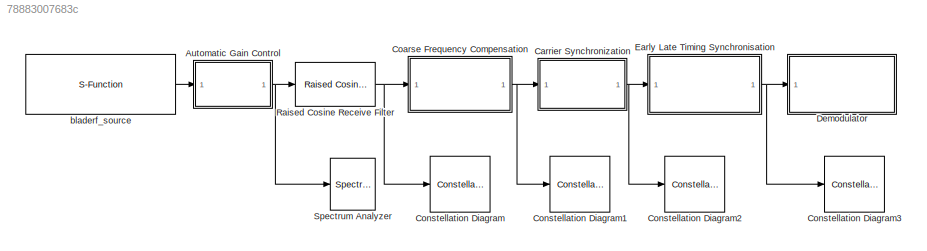
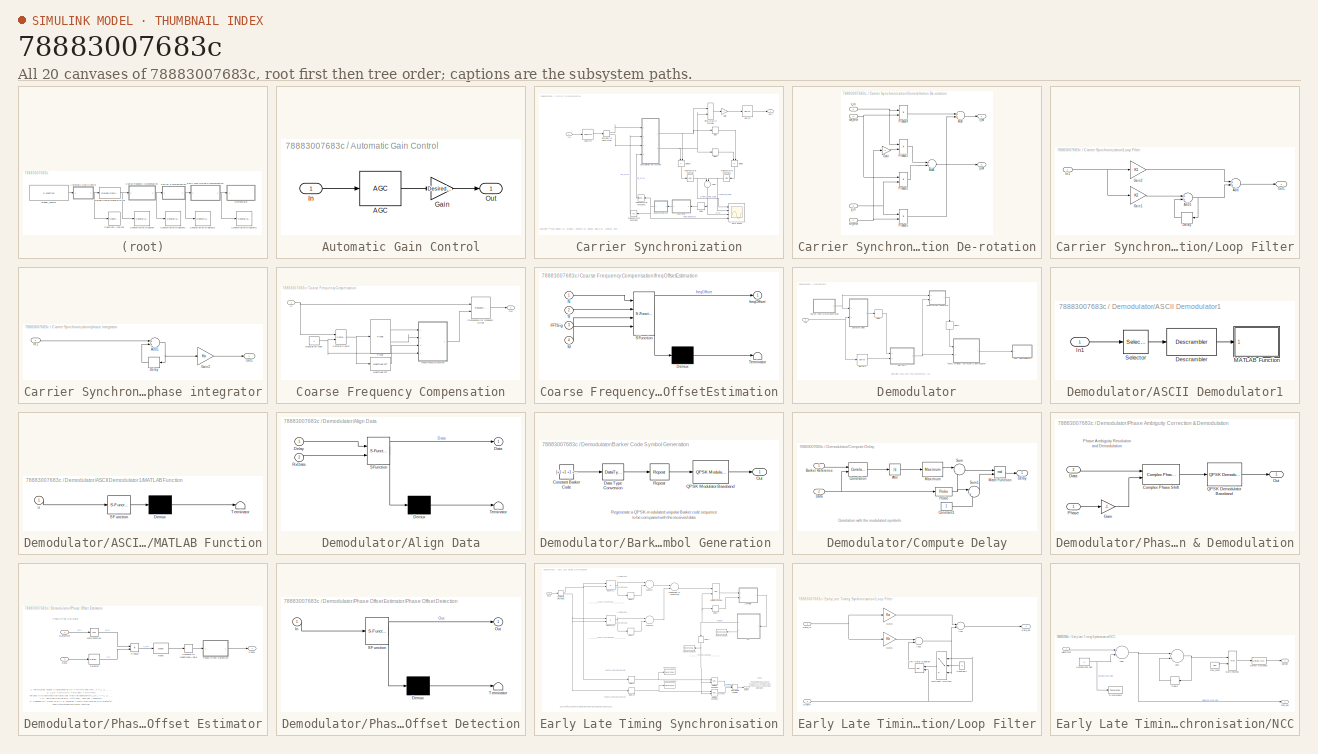
[diagram: thumbnail index - all 20 canvases of the model, root first then tree order]
MODEL slx_78883007683c
KIND model
CONFIG AbsTol = auto
CONFIG FixedStep = auto
CONFIG InitFcn = % General simulation parameters\nM = 4;                         % M-PSK alphabet size\nUpsampling = 4;            % Upsampling factor\nDownsampling = 2;        % Downsampling factor\nFs = 2e6;                     % Sample rate\nTs = 1/Fs;                    % Sample time\nFrameSize = 111;          % Number of modulated symbols per frame\n%MessageLength = 105;  % Number of message bits per frame, 7 ASCII ...<+1014ch>
CONFIG MaxStep = auto
CONFIG MinStep = auto
CONFIG RelTol = 1e-3
CONFIG SampleTimeConstraint = Unconstrained
CONFIG Solver = VariableStepAuto
CONFIG SolverMode = Auto
CONFIG SolverName = VariableStepAuto
CONFIG StartTime = 0.0
CONFIG StopTime = inf
BLOCK [SubSystem] Automatic Gain Control
  Ports = [1, 1]
  RequestExecContextInheritance = off
  Variant = off
BLOCK [Reference] Automatic Gain Control/AGC  REF=commrfcorlib/AGC
  Ports = [1, 1]
  SourceBlock = commrfcorlib/AGC
  SourceType = AGC
BLOCK [Gain] Automatic Gain Control/Gain
  Gain = DesiredAmplitude
  OutDataTypeStr = Inherit: Inherit via internal rule
  ParamDataTypeStr = Inherit: Inherit via internal rule
  SaturateOnIntegerOverflow = off
BLOCK [Inport] Automatic Gain Control/In
  IconDisplay = Port number
BLOCK [Outport] Automatic Gain Control/Out
  IconDisplay = Port number
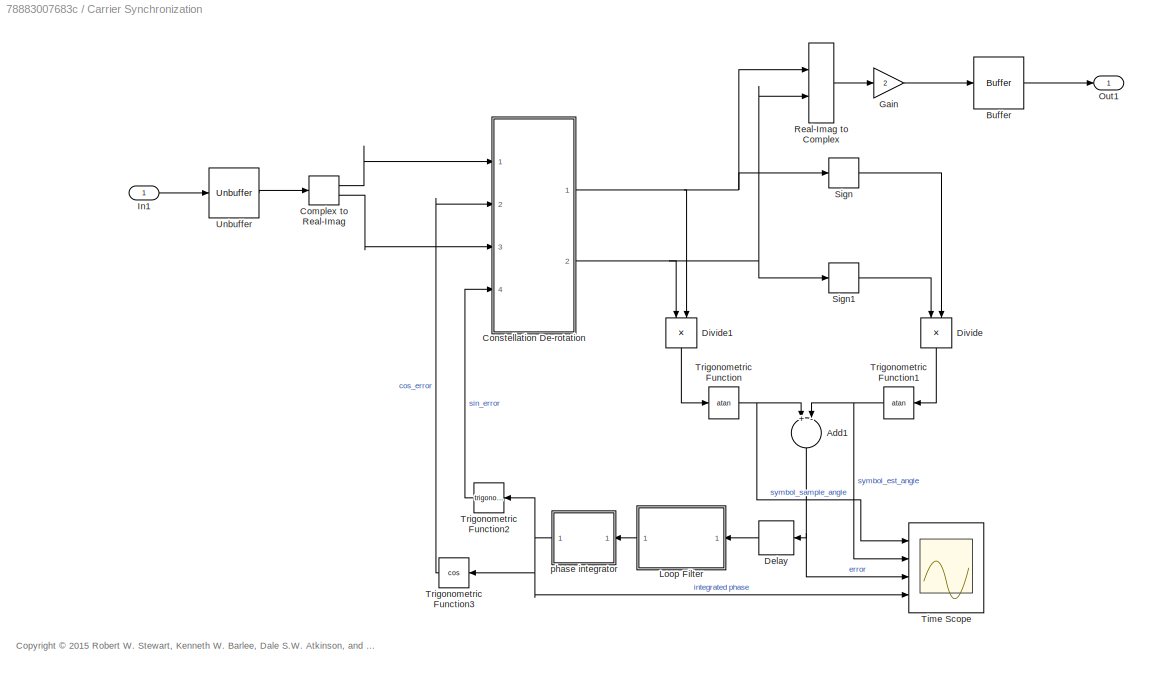
BLOCK [SubSystem] Carrier Synchronization
  Ports = [1, 1]
  RequestExecContextInheritance = off
  Variant = off
BLOCK [Sum] Carrier Synchronization/Add1
  InputSameDT = off
  Inputs = +-
  OutDataTypeStr = Inherit: Inherit via internal rule
  Ports = [2, 1]
  SaturateOnIntegerOverflow = off
BLOCK [Buffer] Carrier Synchronization/Buffer
  N = 111
  OutputFrames = off
  TreatMby1Signals = One channel
BLOCK [ComplexToRealImag] Carrier Synchronization/Complex to Real-Imag
  Ports = [1, 2]
BLOCK [SubSystem] Carrier Synchronization/Constellation De-rotation
  Ports = [4, 2]
  RequestExecContextInheritance = off
  Variant = off
BLOCK [Sum] Carrier Synchronization/Constellation De-rotation/Add
  InputSameDT = off
  OutDataTypeStr = Inherit: Inherit via internal rule
  Ports = [2, 1]
  SaturateOnIntegerOverflow = off
BLOCK [Sum] Carrier Synchronization/Constellation De-rotation/Add1
  InputSameDT = off
  OutDataTypeStr = Inherit: Inherit via internal rule
  Ports = [2, 1]
  SaturateOnIntegerOverflow = off
BLOCK [Gain] Carrier Synchronization/Constellation De-rotation/Gain
  Gain = -1
  OutDataTypeStr = Inherit: Inherit via internal rule
  ParamDataTypeStr = Inherit: Inherit via internal rule
  SaturateOnIntegerOverflow = off
BLOCK [Product] Carrier Synchronization/Constellation De-rotation/Product1
  InputSameDT = off
  OutDataTypeStr = Inherit: Inherit via internal rule
  Ports = [2, 1]
  RndMeth = Floor
  SaturateOnIntegerOverflow = off
BLOCK [Product] Carrier Synchronization/Constellation De-rotation/Product2
  InputSameDT = off
  OutDataTypeStr = Inherit: Inherit via internal rule
  Ports = [2, 1]
  RndMeth = Floor
  SaturateOnIntegerOverflow = off
BLOCK [Product] Carrier Synchronization/Constellation De-rotation/Product4
  InputSameDT = off
  OutDataTypeStr = Inherit: Inherit via internal rule
  Ports = [2, 1]
  RndMeth = Floor
  SaturateOnIntegerOverflow = off
BLOCK [Product] Carrier Synchronization/Constellation De-rotation/Product5
  InputSameDT = off
  OutDataTypeStr = Inherit: Inherit via internal rule
  Ports = [2, 1]
  RndMeth = Floor
  SaturateOnIntegerOverflow = off
BLOCK [Inport] Carrier Synchronization/Constellation De-rotation/cos_error
  IconDisplay = Port number
  Port = 2
BLOCK [Inport] Carrier Synchronization/Constellation De-rotation/sin_error
  IconDisplay = Port number
  Port = 4
BLOCK [Inport] Carrier Synchronization/Constellation De-rotation/x_in
  IconDisplay = Port number
BLOCK [Outport] Carrier Synchronization/Constellation De-rotation/x_out
  IconDisplay = Port number
BLOCK [Inport] Carrier Synchronization/Constellation De-rotation/y_in
  IconDisplay = Port number
  Port = 3
BLOCK [Outport] Carrier Synchronization/Constellation De-rotation/y_out
  IconDisplay = Port number
  Port = 2
BLOCK [Delay] Carrier Synchronization/Delay
  DelayLength = 1
  InputPortMap = u0
  Ports = [1, 1]
BLOCK [Product] Carrier Synchronization/Divide
  InputSameDT = off
  Inputs = */
  OutDataTypeStr = Inherit: Inherit via internal rule
  Ports = [2, 1]
  RndMeth = Floor
  SaturateOnIntegerOverflow = off
BLOCK [Product] Carrier Synchronization/Divide1
  InputSameDT = off
  Inputs = */
  OutDataTypeStr = Inherit: Inherit via internal rule
  Ports = [2, 1]
  RndMeth = Floor
  SaturateOnIntegerOverflow = off
BLOCK [Gain] Carrier Synchronization/Gain
  Gain = 2
  OutDataTypeStr = Inherit: Inherit via internal rule
  ParamDataTypeStr = Inherit: Inherit via internal rule
  SaturateOnIntegerOverflow = off
BLOCK [Inport] Carrier Synchronization/In1
  IconDisplay = Port number
BLOCK [SubSystem] Carrier Synchronization/Loop Filter
  Ports = [1, 1]
  RequestExecContextInheritance = off
  Variant = off
BLOCK [Sum] Carrier Synchronization/Loop Filter/Add
  InputSameDT = off
  OutDataTypeStr = Inherit: Inherit via internal rule
  Ports = [2, 1]
  SaturateOnIntegerOverflow = off
BLOCK [Sum] Carrier Synchronization/Loop Filter/Add1
  InputSameDT = off
  OutDataTypeStr = Inherit: Inherit via internal rule
  Ports = [2, 1]
  SaturateOnIntegerOverflow = off
BLOCK [Delay] Carrier Synchronization/Loop Filter/Delay
  DelayLength = 1
  InputPortMap = u0
  Ports = [1, 1]
BLOCK [Gain] Carrier Synchronization/Loop Filter/Gain1
  Gain = K2
  OutDataTypeStr = Inherit: Inherit via internal rule
  ParamDataTypeStr = Inherit: Inherit via internal rule
  SaturateOnIntegerOverflow = off
BLOCK [Gain] Carrier Synchronization/Loop Filter/Gain2
  Gain = K1
  OutDataTypeStr = Inherit: Inherit via internal rule
  ParamDataTypeStr = Inherit: Inherit via internal rule
  SaturateOnIntegerOverflow = off
BLOCK [Inport] Carrier Synchronization/Loop Filter/In1
  IconDisplay = Port number
BLOCK [Outport] Carrier Synchronization/Loop Filter/Out1
  IconDisplay = Port number
BLOCK [Outport] Carrier Synchronization/Out1
  IconDisplay = Port number
BLOCK [RealImagToComplex] Carrier Synchronization/Real-Imag to Complex
  Ports = [2, 1]
BLOCK [Signum] Carrier Synchronization/Sign
BLOCK [Signum] Carrier Synchronization/Sign1
BLOCK [Scope] Carrier Synchronization/Time Scope
  Commented = on
  DefaultConfigurationName = spbscopes.TimeScopeBlockCfg
  NumInputPorts = 4
  Ports = [4]
  ScopeSpecificationString = spbscopes.TimeScopeBlockCfg('CurrentConfiguration', extmgr.ConfigurationSet(extmgr.Configuration('Core','General UI',true,'FigureColor',[0.941176470588235 0.941176470588235 0.941176470588235]),extmgr.Configuration('Core','Source UI',true),extmgr.Configuration('Sources','WiredSimulink',true,'PointsPerSignal',500000),extmgr.Configuration('Visuals','Time Domain',true,'DisplayLayoutDimensions',[4 1],'...<+4327ch>
  StartFcn = startfcn_time_scope;
  UserDataPersistent = on
BLOCK [Trigonometry] Carrier Synchronization/Trigonometric Function
  Operator = atan
  OutputSignalType = real
  Ports = [1, 1]
BLOCK [Trigonometry] Carrier Synchronization/Trigonometric Function1
  Operator = atan
  OutputSignalType = real
  Ports = [1, 1]
BLOCK [Trigonometry] Carrier Synchronization/Trigonometric Function2
  Ports = [1, 1]
BLOCK [Trigonometry] Carrier Synchronization/Trigonometric Function3
  Operator = cos
  Ports = [1, 1]
BLOCK [Unbuffer] Carrier Synchronization/Unbuffer
  Ports = [1, 1]
  SampleBasedProcessing = Same as frame based
BLOCK [SubSystem] Carrier Synchronization/phase integrator
  Ports = [1, 1]
  RequestExecContextInheritance = off
  Variant = off
BLOCK [Sum] Carrier Synchronization/phase integrator/Add1
  InputSameDT = off
  OutDataTypeStr = Inherit: Inherit via internal rule
  Ports = [2, 1]
  SaturateOnIntegerOverflow = off
BLOCK [Delay] Carrier Synchronization/phase integrator/Delay
  DelayLength = 1
  InputPortMap = u0
  Ports = [1, 1]
BLOCK [Gain] Carrier Synchronization/phase integrator/Gain2
  Gain = Ko
  OutDataTypeStr = Inherit: Inherit via internal rule
  ParamDataTypeStr = Inherit: Inherit via internal rule
  SaturateOnIntegerOverflow = off
BLOCK [Inport] Carrier Synchronization/phase integrator/In1
  IconDisplay = Port number
BLOCK [Outport] Carrier Synchronization/phase integrator/Out1
  IconDisplay = Port number
BLOCK [SubSystem] Coarse Frequency Compensation
  Ports = [1, 1]
  RequestExecContextInheritance = off
  Variant = off
BLOCK [Reference] Coarse Frequency Compensation/Compensate for Frequency Offset  REF=commrflib2/Phase//
Frequency
Offset
  Ports = [2, 1]
  SourceBlock = commrflib2/Phase//\nFrequency\nOffset
  SourceType = Phase/Frequency Offset
BLOCK [Reference] Coarse Frequency Compensation/Complex Power  REF=commblksprivate/Complex Power
  Ports = [2, 1]
  SourceBlock = commblksprivate/Complex Power
  SourceType = Complex Power
BLOCK [Inport] Coarse Frequency Compensation/In
  IconDisplay = Port number
BLOCK [Reference] Coarse Frequency Compensation/Magnitude FFT  REF=dspspect3/Magnitude
FFT
  Ports = [1, 1]
  SourceBlock = dspspect3/Magnitude\nFFT
  SourceType = Magnitude FFT
BLOCK [Constant] Coarse Frequency Compensation/Modulation Index
  OutDataTypeStr = Inherit: Inherit via back propagation
  Value = 4
BLOCK [Outport] Coarse Frequency Compensation/Out
  IconDisplay = Port number
BLOCK [Probe] Coarse Frequency Compensation/Probe
  Ports = [1, 2]
  ProbeComplexSignal = off
BLOCK [SubSystem] Coarse Frequency Compensation/freqOffsetEstimation
  ErrorFcn = Stateflow.Translate.translate
  PermitHierarchicalResolution = ExplicitOnly
  Ports = [4, 1]
  RequestExecContextInheritance = off
  SFBlockType = MATLAB Function
  TreatAsAtomicUnit = on
  Variant = off
BLOCK [Demux] Coarse Frequency Compensation/freqOffsetEstimation/ Demux 
  Outputs = 1
  Ports = [1, 1]
BLOCK [S-Function] Coarse Frequency Compensation/freqOffsetEstimation/ SFunction 
  EnableBusSupport = on
  FunctionName = sf_sfun
  PortCounts = [4 2]
  Ports = [4, 2]
  SFunctionDeploymentMode = off
  Tag = Stateflow S-Function QpskRxBradeRf 2
BLOCK [Terminator] Coarse Frequency Compensation/freqOffsetEstimation/ Terminator 
BLOCK [Inport] Coarse Frequency Compensation/freqOffsetEstimation/FFTSig
  IconDisplay = Port number
  Port = 3
BLOCK [Inport] Coarse Frequency Compensation/freqOffsetEstimation/M
  IconDisplay = Port number
  Port = 4
BLOCK [Inport] Coarse Frequency Compensation/freqOffsetEstimation/N
  IconDisplay = Port number
BLOCK [Inport] Coarse Frequency Compensation/freqOffsetEstimation/Tf
  IconDisplay = Port number
  Port = 2
BLOCK [Outport] Coarse Frequency Compensation/freqOffsetEstimation/freqOffset
  IconDisplay = Port number
BLOCK [ConstellationDiagram] Constellation Diagram
  Ports = [1]
  ScopeSpecificationString = comm.scopes.ConstellationDiagramBlockCfg('CurrentConfiguration', extmgr.ConfigurationSet(extmgr.Configuration('Core','General UI',true),extmgr.Configuration('Core','Source UI',true),extmgr.Configuration('Sources','WiredSimulink',true),extmgr.Configuration('Visuals','Constellation',true,'LineProperties',struct('DisplayName','','Color',[1 1 0.0666666666666667],'LineStyle','none','LineWidth',0.5,'Mar...<+1151ch>
BLOCK [ConstellationDiagram] Constellation Diagram1
  Ports = [1]
  ScopeSpecificationString = comm.scopes.ConstellationDiagramBlockCfg('CurrentConfiguration', extmgr.ConfigurationSet(extmgr.Configuration('Core','General UI',true),extmgr.Configuration('Core','Source UI',true),extmgr.Configuration('Sources','WiredSimulink',true),extmgr.Configuration('Visuals','Constellation',true,'LineProperties',struct('DisplayName','','Color',[1 1 0.0666666666666667],'LineStyle','none','LineWidth',0.5,'Mar...<+1152ch>
BLOCK [ConstellationDiagram] Constellation Diagram2
  Ports = [1]
  ScopeSpecificationString = comm.scopes.ConstellationDiagramBlockCfg('CurrentConfiguration', extmgr.ConfigurationSet(extmgr.Configuration('Core','General UI',true),extmgr.Configuration('Core','Source UI',true),extmgr.Configuration('Sources','WiredSimulink',true),extmgr.Configuration('Visuals','Constellation',true,'LineProperties',struct('DisplayName','','Color',[1 1 0.0666666666666667],'LineStyle','none','LineWidth',0.5,'Mar...<+1152ch>
BLOCK [ConstellationDiagram] Constellation Diagram3
  Ports = [1]
  ScopeSpecificationString = comm.scopes.ConstellationDiagramBlockCfg('CurrentConfiguration', extmgr.ConfigurationSet(extmgr.Configuration('Core','General UI',true),extmgr.Configuration('Core','Source UI',true),extmgr.Configuration('Sources','WiredSimulink',true),extmgr.Configuration('Visuals','Constellation',true,'LineProperties',struct('DisplayName','','Color',[1 1 0.0666666666666667],'LineStyle','none','LineWidth',0.5,'Mar...<+1153ch>
BLOCK [SubSystem] Demodulator
  Ports = [1]
  RequestExecContextInheritance = off
  Variant = off
BLOCK [SubSystem] Demodulator/ASCII Demodulator1
  Ports = [1]
  RequestExecContextInheritance = off
  Variant = off
BLOCK [Reference] Demodulator/ASCII Demodulator1/Descrambler  REF=commsequence2/Descrambler
  Ports = [1, 1]
  SourceBlock = commsequence2/Descrambler
  SourceType = Descrambler
BLOCK [Inport] Demodulator/ASCII Demodulator1/In1
  IconDisplay = Port number
BLOCK [SubSystem] Demodulator/ASCII Demodulator1/MATLAB Function
  ErrorFcn = Stateflow.Translate.translate
  PermitHierarchicalResolution = ExplicitOnly
  Ports = [1]
  RequestExecContextInheritance = off
  SFBlockType = MATLAB Function
  TreatAsAtomicUnit = on
  Variant = off
BLOCK [Demux] Demodulator/ASCII Demodulator1/MATLAB Function/ Demux 
  Outputs = 1
  Ports = [1, 1]
BLOCK [S-Function] Demodulator/ASCII Demodulator1/MATLAB Function/ SFunction 
  EnableBusSupport = on
  FunctionName = sf_sfun
  PortCounts = [1 1]
  Ports = [1, 1]
  SFunctionDeploymentMode = off
  Tag = Stateflow S-Function QpskRxBradeRf 5
BLOCK [Terminator] Demodulator/ASCII Demodulator1/MATLAB Function/ Terminator 
BLOCK [Inport] Demodulator/ASCII Demodulator1/MATLAB Function/u
  IconDisplay = Port number
BLOCK [Selector] Demodulator/ASCII Demodulator1/Selector
  IndexOptions = Index vector (dialog)
  Indices = [27:208]
  InputPortWidth = 222
  OutputSizes = 1
  Ports = [1, 1]
BLOCK [SubSystem] Demodulator/Align Data
  ErrorFcn = Stateflow.Translate.translate
  PermitHierarchicalResolution = ExplicitOnly
  Ports = [2, 1]
  RequestExecContextInheritance = off
  SFBlockType = MATLAB Function
  TreatAsAtomicUnit = on
  Variant = off
BLOCK [Demux] Demodulator/Align Data/ Demux 
  Outputs = 1
  Ports = [1, 1]
BLOCK [S-Function] Demodulator/Align Data/ SFunction 
  EnableBusSupport = on
  FunctionName = sf_sfun
  PortCounts = [2 2]
  Ports = [2, 2]
  SFunctionDeploymentMode = off
  Tag = Stateflow S-Function QpskRxBradeRf 3
BLOCK [Terminator] Demodulator/Align Data/ Terminator 
BLOCK [Outport] Demodulator/Align Data/Data
  IconDisplay = Port number
BLOCK [Inport] Demodulator/Align Data/Delay
  IconDisplay = Port number
BLOCK [Inport] Demodulator/Align Data/RxData
  IconDisplay = Port number
  Port = 2
BLOCK [SubSystem] Demodulator/Barker Code Symbol Generation 
  Ports = [0, 1]
  RequestExecContextInheritance = off
  Variant = off
BLOCK [Constant] Demodulator/Barker Code Symbol Generation /Constant Barker Code
  SamplingMode = Frame based
  Value = [+1 +1 +1 +1 +1 -1 -1 +1 +1 -1 +1 -1 +1\n].' > 0
  VectorParams1D = off
BLOCK [DataTypeConversion] Demodulator/Barker Code Symbol Generation /Data Type Conversion
  OutDataTypeStr = double
  RndMeth = Floor
  SaturateOnIntegerOverflow = off
BLOCK [Outport] Demodulator/Barker Code Symbol Generation /Out
  IconDisplay = Port number
BLOCK [Reference] Demodulator/Barker Code Symbol Generation /QPSK Modulator Baseband  REF=commdigbbndpm3/QPSK
Modulator
Baseband
  Ports = [1, 1]
  SourceBlock = commdigbbndpm3/QPSK\nModulator\nBaseband
  SourceType = QPSK Modulator Baseband
BLOCK [Reference] Demodulator/Barker Code Symbol Generation /Repeat  REF=dspsigops/Repeat
  Ports = [1, 1]
  SourceBlock = dspsigops/Repeat
  SourceType = Repeat
  UserDataPersistent = on
BLOCK [Buffer] Demodulator/Buffer1
  N = FrameSize*2
  TreatMby1Signals = One channel
  V = FrameSize
BLOCK [SubSystem] Demodulator/Compute Delay
  Ports = [2, 1]
  RequestExecContextInheritance = off
  Variant = off
BLOCK [Abs] Demodulator/Compute Delay/Abs
  SaturateOnIntegerOverflow = off
BLOCK [Inport] Demodulator/Compute Delay/Barker Reference
  IconDisplay = Port number
BLOCK [Constant] Demodulator/Compute Delay/Constant1
  FramePeriod = 2
  OutDataTypeStr = Inherit: Inherit via back propagation
  VectorParams1D = off
BLOCK [Reference] Demodulator/Compute Delay/Correlation  REF=dspstat3/Correlation
  Ports = [2, 1]
  SourceBlock = dspstat3/Correlation
  SourceType = Correlation
BLOCK [Inport] Demodulator/Compute Delay/Data
  IconDisplay = Port number
  Port = 2
BLOCK [Outport] Demodulator/Compute Delay/Delay
  IconDisplay = Port number
BLOCK [Math] Demodulator/Compute Delay/Math Function
  Operator = mod
  Ports = [2, 1]
BLOCK [Reference] Demodulator/Compute Delay/Maximum  REF=dspstat3/Maximum
  Ports = [1, 1]
  SourceBlock = dspstat3/Maximum
  SourceType = Maximum
  UserDataPersistent = on
BLOCK [Probe] Demodulator/Compute Delay/Probe
  Ports = [1, 1]
  ProbeComplexSignal = off
  ProbeSampleTime = off
BLOCK [Sum] Demodulator/Compute Delay/Sum
  IconShape = round
  Inputs = |-+
  Ports = [2, 1]
BLOCK [Sum] Demodulator/Compute Delay/Sum1
  IconShape = round
  Inputs = |+-
  Ports = [2, 1]
BLOCK [Delay] Demodulator/Delay
  DelayLength = 1
  InputPortMap = u0
  Ports = [1, 1]
BLOCK [Delay] Demodulator/Delay1
  DelayLength = 1
  InputPortMap = u0
  Ports = [1, 1]
BLOCK [Inport] Demodulator/In1
  IconDisplay = Port number
BLOCK [SubSystem] Demodulator/Phase Ambiguity Correction & Demodulation
  Ports = [2, 1]
  RequestExecContextInheritance = off
  Variant = off
BLOCK [Reference] Demodulator/Phase Ambiguity Correction & Demodulation/Complex Phase Shift  REF=commutil2/Complex Phase
Shift
  Ports = [2, 1]
  SourceBlock = commutil2/Complex Phase\nShift
  SourceType = Complex Phase Shift
BLOCK [Inport] Demodulator/Phase Ambiguity Correction & Demodulation/Data
  IconDisplay = Port number
  Port = 2
BLOCK [Gain] Demodulator/Phase Ambiguity Correction & Demodulation/Gain
  Gain = -1
  OutDataTypeStr = Inherit: Inherit via internal rule
  ParamDataTypeStr = Inherit: Inherit via internal rule
  SaturateOnIntegerOverflow = off
BLOCK [Outport] Demodulator/Phase Ambiguity Correction & Demodulation/Out
  IconDisplay = Port number
BLOCK [Inport] Demodulator/Phase Ambiguity Correction & Demodulation/Phase
  IconDisplay = Port number
BLOCK [Reference] Demodulator/Phase Ambiguity Correction & Demodulation/QPSK Demodulator Baseband  REF=commdigbbndpm3/QPSK
Demodulator
Baseband
  Ports = [1, 1]
  SourceBlock = commdigbbndpm3/QPSK\nDemodulator\nBaseband
  SourceType = QPSK Demodulator Baseband
BLOCK [SubSystem] Demodulator/Phase Offset Estimator
  Ports = [2, 1]
  RequestExecContextInheritance = off
  Variant = off
BLOCK [Inport] Demodulator/Phase Offset Estimator/BarkerRef
  IconDisplay = Port number
BLOCK [ComplexToMagnitudeAngle] Demodulator/Phase Offset Estimator/Complex to Magnitude-Angle
  Output = Angle
  Ports = [1, 1]
BLOCK [Inport] Demodulator/Phase Offset Estimator/Data
  IconDisplay = Port number
  Port = 2
BLOCK [Math] Demodulator/Phase Offset Estimator/Math Function
  Operator = conj
  Ports = [1, 1]
BLOCK [Reference] Demodulator/Phase Offset Estimator/Mean  REF=dspstat3/Mean
  Ports = [1, 1]
  SourceBlock = dspstat3/Mean
  SourceType = Mean
  UserDataPersistent = on
BLOCK [Outport] Demodulator/Phase Offset Estimator/Phase
  IconDisplay = Port number
BLOCK [SubSystem] Demodulator/Phase Offset Estimator/Phase Offset Detection
  ErrorFcn = Stateflow.Translate.translate
  PermitHierarchicalResolution = ExplicitOnly
  Ports = [1, 1]
  RequestExecContextInheritance = off
  SFBlockType = MATLAB Function
  TreatAsAtomicUnit = on
  Variant = off
BLOCK [Demux] Demodulator/Phase Offset Estimator/Phase Offset Detection/ Demux 
  Outputs = 1
  Ports = [1, 1]
BLOCK [S-Function] Demodulator/Phase Offset Estimator/Phase Offset Detection/ SFunction 
  EnableBusSupport = on
  FunctionName = sf_sfun
  PortCounts = [1 2]
  Ports = [1, 2]
  SFunctionDeploymentMode = off
  Tag = Stateflow S-Function QpskRxBradeRf 8
BLOCK [Terminator] Demodulator/Phase Offset Estimator/Phase Offset Detection/ Terminator 
BLOCK [Inport] Demodulator/Phase Offset Estimator/Phase Offset Detection/In
  IconDisplay = Port number
BLOCK [Outport] Demodulator/Phase Offset Estimator/Phase Offset Detection/Out
  IconDisplay = Port number
BLOCK [Product] Demodulator/Phase Offset Estimator/Product
  InputSameDT = off
  OutDataTypeStr = Inherit: Inherit via internal rule
  Ports = [2, 1]
  SaturateOnIntegerOverflow = off
BLOCK [Selector] Demodulator/Phase Offset Estimator/Selector
  IndexOptions = Index vector (dialog)
  Indices = [1:BarkerLength]
  OutputSizes = 1
  Ports = [1, 1]
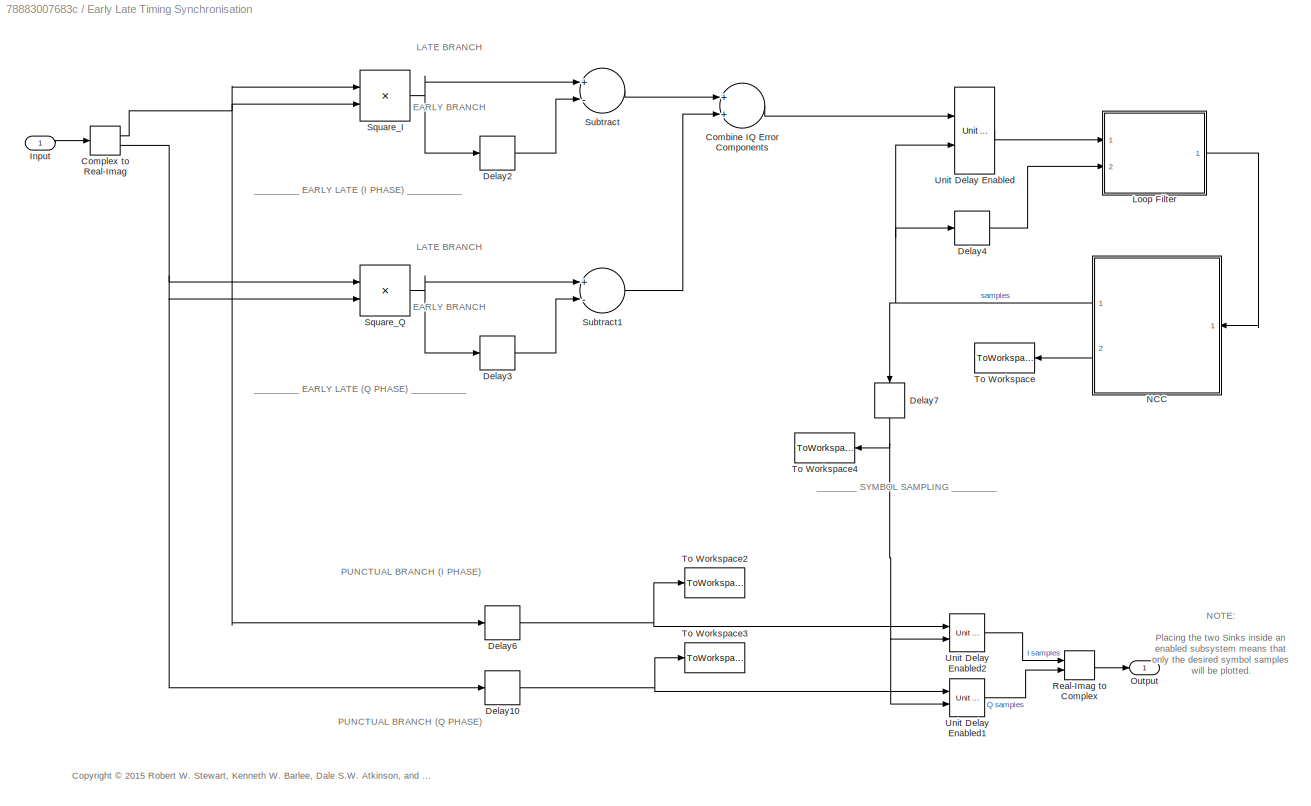
BLOCK [SubSystem] Early Late Timing Synchronisation
  Ports = [1, 1]
  RequestExecContextInheritance = off
  Variant = off
BLOCK [Sum] Early Late Timing Synchronisation/Combine IQ Error Components
  InputSameDT = off
  OutDataTypeStr = Inherit: Inherit via internal rule
  Ports = [2, 1]
  SaturateOnIntegerOverflow = off
BLOCK [ComplexToRealImag] Early Late Timing Synchronisation/Complex to Real-Imag
  Ports = [1, 2]
BLOCK [Delay] Early Late Timing Synchronisation/Delay10
  DelayLength = round(fs/Rdata)
  InputPortMap = u0
  Ports = [1, 1]
BLOCK [Delay] Early Late Timing Synchronisation/Delay2
  DelayLength = round(fs/(Rdata/2))
  InputPortMap = u0
  Ports = [1, 1]
BLOCK [Delay] Early Late Timing Synchronisation/Delay3
  DelayLength = round(fs/(Rdata/2))
  InputPortMap = u0
  Ports = [1, 1]
BLOCK [Delay] Early Late Timing Synchronisation/Delay4
  DelayLength = 1
  InputPortMap = u0
  Ports = [1, 1]
BLOCK [Delay] Early Late Timing Synchronisation/Delay6
  DelayLength = round(fs/Rdata)
  InputPortMap = u0
  Ports = [1, 1]
BLOCK [Delay] Early Late Timing Synchronisation/Delay7
  DelayLength = round(fs/Rdata)
  InputPortMap = u0
  Ports = [1, 1]
BLOCK [Inport] Early Late Timing Synchronisation/Input
  IconDisplay = Port number
BLOCK [SubSystem] Early Late Timing Synchronisation/Loop Filter
  Ports = [2, 1]
  RequestExecContextInheritance = off
  Variant = off
BLOCK [Sum] Early Late Timing Synchronisation/Loop Filter/Add
  InputSameDT = off
  OutDataTypeStr = Inherit: Inherit via internal rule
  Ports = [2, 1]
  SaturateOnIntegerOverflow = off
BLOCK [Sum] Early Late Timing Synchronisation/Loop Filter/Add1
  InputSameDT = off
  OutDataTypeStr = Inherit: Inherit via internal rule
  Ports = [2, 1]
  SaturateOnIntegerOverflow = off
BLOCK [Constant] Early Late Timing Synchronisation/Loop Filter/Constant1
  SampleTime = 1/fs
  Value = 0
BLOCK [Inport] Early Late Timing Synchronisation/Loop Filter/Data_in
  IconDisplay = Port number
BLOCK [Outport] Early Late Timing Synchronisation/Loop Filter/Data_out
  IconDisplay = Port number
BLOCK [Inport] Early Late Timing Synchronisation/Loop Filter/Enable
  IconDisplay = Port number
  Port = 2
BLOCK [Gain] Early Late Timing Synchronisation/Loop Filter/Gain1
  Gain = Kb
  OutDataTypeStr = Inherit: Inherit via internal rule
  ParamDataTypeStr = Inherit: Inherit via internal rule
  SaturateOnIntegerOverflow = off
BLOCK [Gain] Early Late Timing Synchronisation/Loop Filter/Gain2
  Gain = Ka
  OutDataTypeStr = Inherit: Inherit via internal rule
  ParamDataTypeStr = Inherit: Inherit via internal rule
  SaturateOnIntegerOverflow = off
BLOCK [MultiPortSwitch] Early Late Timing Synchronisation/Loop Filter/Multiport Switch1
  DataPortOrder = Zero-based contiguous
  InputSameDT = off
  Inputs = 2
  Ports = [3, 1]
  SaturateOnIntegerOverflow = off
BLOCK [Reference] Early Late Timing Synchronisation/Loop Filter/Unit Delay Enabled  REF=simulink/Additional Math
& Discrete/Additional
Discrete/Unit Delay
Enabled
  Ports = [2, 1]
  SourceBlock = simulink/Additional Math\n& Discrete/Additional\nDiscrete/Unit Delay\nEnabled
  SourceType = Unit Delay Enabled
BLOCK [SubSystem] Early Late Timing Synchronisation/NCC
  Ports = [1, 2]
  RequestExecContextInheritance = off
  Variant = off
BLOCK [Sum] Early Late Timing Synchronisation/NCC/Add1
  InputSameDT = off
  OutDataTypeStr = double
  Ports = [2, 1]
  SaturateOnIntegerOverflow = off
BLOCK [Sum] Early Late Timing Synchronisation/NCC/Add2
  InputSameDT = off
  OutDataTypeStr = double
  Ports = [2, 1]
  SaturateOnIntegerOverflow = off
BLOCK [Inport] Early Late Timing Synchronisation/NCC/Adjustment
  IconDisplay = Port number
BLOCK [Delay] Early Late Timing Synchronisation/NCC/Delay9
  DelayLength = 1
  InputPortMap = u0
  Ports = [1, 1]
BLOCK [Reference] Early Late Timing Synchronisation/NCC/Detect Decrease  REF=simulink/Logic and Bit
Operations/Detect
Decrease
  Ports = [1, 1]
  SourceBlock = simulink/Logic and Bit\nOperations/Detect\nDecrease
  SourceType = Detect Decrease
BLOCK [Math] Early Late Timing Synchronisation/NCC/Math Function
  Operator = mod
  Ports = [2, 1]
BLOCK [Constant] Early Late Timing Synchronisation/NCC/Nominal Step Size
  OutDataTypeStr = double
  SampleTime = 1/fs
BLOCK [Outport] Early Late Timing Synchronisation/NCC/Sample
  IconDisplay = Port number
BLOCK [Outport] Early Late Timing Synchronisation/NCC/Step_adj
  IconDisplay = Port number
  Port = 2
BLOCK [ToWorkspace] Early Late Timing Synchronisation/NCC/To Workspace
  FixptAsFi = on
  MaxDataPoints = inf
  Ports = [1]
  SampleTime = -1
  Save2DSignal = 3-D array (concatenate along third dimension)
  SaveFormat = Structure With Time
  VariableName = step_nom
BLOCK [Constant] Early Late Timing Synchronisation/NCC/max_count
  OutDataTypeStr = double
  SampleTime = 1/fs
  Value = OSR
BLOCK [Outport] Early Late Timing Synchronisation/Output
  IconDisplay = Port number
BLOCK [RealImagToComplex] Early Late Timing Synchronisation/Real-Imag to Complex
  Ports = [2, 1]
BLOCK [Product] Early Late Timing Synchronisation/Square_I
  InputSameDT = off
  OutDataTypeStr = Inherit: Inherit via internal rule
  Ports = [2, 1]
  RndMeth = Floor
  SaturateOnIntegerOverflow = off
BLOCK [Product] Early Late Timing Synchronisation/Square_Q
  InputSameDT = off
  OutDataTypeStr = Inherit: Inherit via internal rule
  Ports = [2, 1]
  RndMeth = Floor
  SaturateOnIntegerOverflow = off
BLOCK [Sum] Early Late Timing Synchronisation/Subtract
  InputSameDT = off
  Inputs = +-
  OutDataTypeStr = Inherit: Inherit via internal rule
  Ports = [2, 1]
  SaturateOnIntegerOverflow = off
BLOCK [Sum] Early Late Timing Synchronisation/Subtract1
  InputSameDT = off
  Inputs = +-
  OutDataTypeStr = Inherit: Inherit via internal rule
  Ports = [2, 1]
  SaturateOnIntegerOverflow = off
BLOCK [ToWorkspace] Early Late Timing Synchronisation/To Workspace
  FixptAsFi = on
  MaxDataPoints = inf
  Ports = [1]
  SampleTime = -1
  Save2DSignal = 3-D array (concatenate along third dimension)
  SaveFormat = Structure With Time
  VariableName = step_adj
BLOCK [ToWorkspace] Early Late Timing Synchronisation/To Workspace2
  FixptAsFi = on
  MaxDataPoints = inf
  Ports = [1]
  SampleTime = -1
  Save2DSignal = 3-D array (concatenate along third dimension)
  SaveFormat = Structure With Time
  VariableName = i_punctual
BLOCK [ToWorkspace] Early Late Timing Synchronisation/To Workspace3
  FixptAsFi = on
  MaxDataPoints = inf
  Ports = [1]
  SampleTime = -1
  Save2DSignal = 3-D array (concatenate along third dimension)
  SaveFormat = Structure With Time
  VariableName = q_punctual
BLOCK [ToWorkspace] Early Late Timing Synchronisation/To Workspace4
  FixptAsFi = on
  MaxDataPoints = inf
  Ports = [1]
  SampleTime = -1
  Save2DSignal = 3-D array (concatenate along third dimension)
  SaveFormat = Structure With Time
  VariableName = samples
BLOCK [Reference] Early Late Timing Synchronisation/Unit Delay Enabled  REF=simulink/Additional Math
& Discrete/Additional
Discrete/Unit Delay
Enabled
  Ports = [2, 1]
  SourceBlock = simulink/Additional Math\n& Discrete/Additional\nDiscrete/Unit Delay\nEnabled
  SourceType = Unit Delay Enabled
BLOCK [Reference] Early Late Timing Synchronisation/Unit Delay Enabled1  REF=simulink/Additional Math
& Discrete/Additional
Discrete/Unit Delay
Enabled
  Ports = [2, 1]
  SourceBlock = simulink/Additional Math\n& Discrete/Additional\nDiscrete/Unit Delay\nEnabled
  SourceType = Unit Delay Enabled
BLOCK [Reference] Early Late Timing Synchronisation/Unit Delay Enabled2  REF=simulink/Additional Math
& Discrete/Additional
Discrete/Unit Delay
Enabled
  Ports = [2, 1]
  SourceBlock = simulink/Additional Math\n& Discrete/Additional\nDiscrete/Unit Delay\nEnabled
  SourceType = Unit Delay Enabled
BLOCK [Reference] Raised Cosine Receive Filter  REF=commfilt2/Raised Cosine
Receive Filter
  Ports = [1, 1]
  SourceBlock = commfilt2/Raised Cosine\nReceive Filter
  SourceType = Raised Cosine Receive Filter
  UserDataPersistent = on
BLOCK [SpectrumAnalyzer] Spectrum Analyzer
  Ports = [1]
  ScopeSpecificationString = spbscopes.SpectrumAnalyzerBlockCfg('CurrentConfiguration', extmgr.ConfigurationSet(extmgr.Configuration('Core','General UI',true),extmgr.Configuration('Core','Source UI',true),extmgr.Configuration('Sources','WiredSimulink',true),extmgr.Configuration('Sources','Simulink',false),extmgr.Configuration('Sources','File',false),extmgr.Configuration('Sources','Workspace',false),extmgr.Configuration('Sourc...<+1759ch>
BLOCK [S-Function] bladerf_source
  EnableBusSupport = off
  FunctionName = bladerf_source
  Parameters = set_index,samplerate,set_bandwidth,set_freq,set_lnagain,set_rxvga1,set_rxvga2,set_frame,set_frame_type
  Ports = [0, 1]
  SFunctionDeploymentMode = off
ANNOTATION Carrier Synchronization: <copyright redacted>
ANNOTATION Demodulator: <copyright redacted>
ANNOTATION Demodulator/Barker Code Symbol Generation : Regenerate a QPSK-modulated unipolar Barker code sequence to be compared with the received data
ANNOTATION Demodulator/Compute Delay: Correlation with the modulated symbols
ANNOTATION Demodulator/Phase Ambiguity Correction & Demodulation: Phase Ambiguity Resolution and Demodulation
ANNOTATION Demodulator/Phase Offset Estimator: 1. The original signal is expressed as y(t) = x(t)e^{j\phi}+n(t), t = 1, 2, ..., N 2. y_1(t) = x{*}(t)y(t) = e^{j\phi} + x{*}(t)n(t) The goal is to estimate the value \phi from the observation y_1(t), t = 1, 2, ...N i.e., estimate the value B = e^{j\phi}, and \phi = angle(B) 3. Suppose n(t) yields to a i.i.d. complex AWGN distribution N(0,\sigma^2). Then a non-biased estimator could be B_{est} = 1...<+91ch>
ANNOTATION Demodulator/Phase Offset Estimator: Phase Offset Estimator
ANNOTATION Early Late Timing Synchronisation: <copyright redacted>
ANNOTATION Early Late Timing Synchronisation: EARLY BRANCH
ANNOTATION Early Late Timing Synchronisation: LATE BRANCH
ANNOTATION Early Late Timing Synchronisation: NOTE: Placing the two Sinks inside an enabled subsystem means that only the desired symbol samples will be plotted.
ANNOTATION Early Late Timing Synchronisation: PUNCTUAL BRANCH (I PHASE)
ANNOTATION Early Late Timing Synchronisation: PUNCTUAL BRANCH (Q PHASE)
ANNOTATION Early Late Timing Synchronisation: ________ SYMBOL SAMPLING _________
ANNOTATION Early Late Timing Synchronisation: _________ EARLY LATE (I PHASE) ___________
ANNOTATION Early Late Timing Synchronisation: _________ EARLY LATE (Q PHASE) ___________
LINE Automatic Gain Control/AGC:1 -> Automatic Gain Control/Gain:1
LINE Automatic Gain Control/Gain:1 -> Automatic Gain Control/Out:1
LINE Automatic Gain Control/In:1 -> Automatic Gain Control/AGC:1
NET Automatic Gain Control:1 -> Raised Cosine Receive Filter:1, Spectrum Analyzer:1
NET Carrier Synchronization/Add1:1 -> Carrier Synchronization/Delay:1, Carrier Synchronization/Time Scope:3
LINE Carrier Synchronization/Buffer:1 -> Carrier Synchronization/Out1:1
LINE Carrier Synchronization/Complex to Real-Imag:1 -> Carrier Synchronization/Constellation De-rotation:1
LINE Carrier Synchronization/Complex to Real-Imag:2 -> Carrier Synchronization/Constellation De-rotation:3
LINE Carrier Synchronization/Constellation De-rotation/Add1:1 -> Carrier Synchronization/Constellation De-rotation/y_out:1
LINE Carrier Synchronization/Constellation De-rotation/Add:1 -> Carrier Synchronization/Constellation De-rotation/x_out:1
LINE Carrier Synchronization/Constellation De-rotation/Gain:1 -> Carrier Synchronization/Constellation De-rotation/Product1:2
LINE Carrier Synchronization/Constellation De-rotation/Product1:1 -> Carrier Synchronization/Constellation De-rotation/Add1:1
LINE Carrier Synchronization/Constellation De-rotation/Product2:1 -> Carrier Synchronization/Constellation De-rotation/Add1:2
LINE Carrier Synchronization/Constellation De-rotation/Product4:1 -> Carrier Synchronization/Constellation De-rotation/Add:1
LINE Carrier Synchronization/Constellation De-rotation/Product5:1 -> Carrier Synchronization/Constellation De-rotation/Add:2
NET Carrier Synchronization/Constellation De-rotation/cos_error:1 -> Carrier Synchronization/Constellation De-rotation/Product2:1, Carrier Synchronization/Constellation De-rotation/Product4:2
NET Carrier Synchronization/Constellation De-rotation/sin_error:1 -> Carrier Synchronization/Constellation De-rotation/Gain:1, Carrier Synchronization/Constellation De-rotation/Product5:2
NET Carrier Synchronization/Constellation De-rotation/x_in:1 -> Carrier Synchronization/Constellation De-rotation/Product1:1, Carrier Synchronization/Constellation De-rotation/Product4:1
NET Carrier Synchronization/Constellation De-rotation/y_in:1 -> Carrier Synchronization/Constellation De-rotation/Product2:2, Carrier Synchronization/Constellation De-rotation/Product5:1
NET Carrier Synchronization/Constellation De-rotation:1 -> Carrier Synchronization/Divide1:2, Carrier Synchronization/Real-Imag to Complex:1, Carrier Synchronization/Sign:1
NET Carrier Synchronization/Constellation De-rotation:2 -> Carrier Synchronization/Divide1:1, Carrier Synchronization/Real-Imag to Complex:2, Carrier Synchronization/Sign1:1
LINE Carrier Synchronization/Delay:1 -> Carrier Synchronization/Loop Filter:1
LINE Carrier Synchronization/Divide1:1 -> Carrier Synchronization/Trigonometric Function:1
LINE Carrier Synchronization/Divide:1 -> Carrier Synchronization/Trigonometric Function1:1
LINE Carrier Synchronization/Gain:1 -> Carrier Synchronization/Buffer:1
LINE Carrier Synchronization/In1:1 -> Carrier Synchronization/Unbuffer:1
NET Carrier Synchronization/Loop Filter/Add1:1 -> Carrier Synchronization/Loop Filter/Add:2, Carrier Synchronization/Loop Filter/Delay:1
LINE Carrier Synchronization/Loop Filter/Add:1 -> Carrier Synchronization/Loop Filter/Out1:1
LINE Carrier Synchronization/Loop Filter/Delay:1 -> Carrier Synchronization/Loop Filter/Add1:2
LINE Carrier Synchronization/Loop Filter/Gain1:1 -> Carrier Synchronization/Loop Filter/Add1:1
LINE Carrier Synchronization/Loop Filter/Gain2:1 -> Carrier Synchronization/Loop Filter/Add:1
NET Carrier Synchronization/Loop Filter/In1:1 -> Carrier Synchronization/Loop Filter/Gain1:1, Carrier Synchronization/Loop Filter/Gain2:1
LINE Carrier Synchronization/Loop Filter:1 -> Carrier Synchronization/phase integrator:1
LINE Carrier Synchronization/Real-Imag to Complex:1 -> Carrier Synchronization/Gain:1
LINE Carrier Synchronization/Sign1:1 -> Carrier Synchronization/Divide:1
LINE Carrier Synchronization/Sign:1 -> Carrier Synchronization/Divide:2
NET Carrier Synchronization/Trigonometric Function1:1 -> Carrier Synchronization/Add1:2, Carrier Synchronization/Time Scope:2
LINE Carrier Synchronization/Trigonometric Function2:1 -> Carrier Synchronization/Constellation De-rotation:4
LINE Carrier Synchronization/Trigonometric Function3:1 -> Carrier Synchronization/Constellation De-rotation:2
NET Carrier Synchronization/Trigonometric Function:1 -> Carrier Synchronization/Add1:1, Carrier Synchronization/Time Scope:1
LINE Carrier Synchronization/Unbuffer:1 -> Carrier Synchronization/Complex to Real-Imag:1
NET Carrier Synchronization/phase integrator/Add1:1 -> Carrier Synchronization/phase integrator/Delay:1, Carrier Synchronization/phase integrator/Gain2:1
LINE Carrier Synchronization/phase integrator/Delay:1 -> Carrier Synchronization/phase integrator/Add1:2
LINE Carrier Synchronization/phase integrator/Gain2:1 -> Carrier Synchronization/phase integrator/Out1:1
LINE Carrier Synchronization/phase integrator/In1:1 -> Carrier Synchronization/phase integrator/Add1:1
NET Carrier Synchronization/phase integrator:1 -> Carrier Synchronization/Time Scope:4, Carrier Synchronization/Trigonometric Function2:1, Carrier Synchronization/Trigonometric Function3:1
NET Carrier Synchronization:1 -> Constellation Diagram2:1, Early Late Timing Synchronisation:1
LINE Coarse Frequency Compensation/Compensate for Frequency Offset:1 -> Coarse Frequency Compensation/Out:1
NET Coarse Frequency Compensation/Complex Power:1 -> Coarse Frequency Compensation/Magnitude FFT:1, Coarse Frequency Compensation/Probe:1
NET Coarse Frequency Compensation/In:1 -> Coarse Frequency Compensation/Compensate for Frequency Offset:1, Coarse Frequency Compensation/Complex Power:1
LINE Coarse Frequency Compensation/Magnitude FFT:1 -> Coarse Frequency Compensation/freqOffsetEstimation:3
NET Coarse Frequency Compensation/Modulation Index:1 -> Coarse Frequency Compensation/Complex Power:2, Coarse Frequency Compensation/freqOffsetEstimation:4
LINE Coarse Frequency Compensation/Probe:1 -> Coarse Frequency Compensation/freqOffsetEstimation:1
LINE Coarse Frequency Compensation/Probe:2 -> Coarse Frequency Compensation/freqOffsetEstimation:2
LINE Coarse Frequency Compensation/freqOffsetEstimation:1 -> Coarse Frequency Compensation/Compensate for Frequency Offset:2
NET Coarse Frequency Compensation:1 -> Carrier Synchronization:1, Constellation Diagram1:1
LINE Demodulator/ASCII Demodulator1/Descrambler:1 -> Demodulator/ASCII Demodulator1/MATLAB Function:1
LINE Demodulator/ASCII Demodulator1/In1:1 -> Demodulator/ASCII Demodulator1/Selector:1
LINE Demodulator/ASCII Demodulator1/Selector:1 -> Demodulator/ASCII Demodulator1/Descrambler:1
NET Demodulator/Align Data:1 -> Demodulator/Phase Ambiguity Correction & Demodulation:2, Demodulator/Phase Offset Estimator:2
LINE Demodulator/Barker Code Symbol Generation /Constant Barker Code:1 -> Demodulator/Barker Code Symbol Generation /Data Type Conversion:1
LINE Demodulator/Barker Code Symbol Generation /Data Type Conversion:1 -> Demodulator/Barker Code Symbol Generation /Repeat:1
LINE Demodulator/Barker Code Symbol Generation /QPSK Modulator Baseband:1 -> Demodulator/Barker Code Symbol Generation /Out:1
LINE Demodulator/Barker Code Symbol Generation /Repeat:1 -> Demodulator/Barker Code Symbol Generation /QPSK Modulator Baseband:1
NET Demodulator/Barker Code Symbol Generation :1 -> Demodulator/Compute Delay:1, Demodulator/Phase Offset Estimator:1
LINE Demodulator/Buffer1:1 -> Demodulator/Align Data:2
LINE Demodulator/Compute Delay/Abs:1 -> Demodulator/Compute Delay/Maximum:1
LINE Demodulator/Compute Delay/Barker Reference:1 -> Demodulator/Compute Delay/Correlation:1
LINE Demodulator/Compute Delay/Constant1:1 -> Demodulator/Compute Delay/Sum1:2
LINE Demodulator/Compute Delay/Correlation:1 -> Demodulator/Compute Delay/Abs:1
NET Demodulator/Compute Delay/Data:1 -> Demodulator/Compute Delay/Correlation:2, Demodulator/Compute Delay/Probe:1
LINE Demodulator/Compute Delay/Math Function:1 -> Demodulator/Compute Delay/Delay:1
LINE Demodulator/Compute Delay/Maximum:1 -> Demodulator/Compute Delay/Sum:1
NET Demodulator/Compute Delay/Probe:1 -> Demodulator/Compute Delay/Sum1:1, Demodulator/Compute Delay/Sum:2
LINE Demodulator/Compute Delay/Sum1:1 -> Demodulator/Compute Delay/Math Function:2
LINE Demodulator/Compute Delay/Sum:1 -> Demodulator/Compute Delay/Math Function:1
LINE Demodulator/Compute Delay:1 -> Demodulator/Delay:1
LINE Demodulator/Delay1:1 -> Demodulator/Phase Ambiguity Correction & Demodulation:1
LINE Demodulator/Delay:1 -> Demodulator/Align Data:1
NET Demodulator/In1:1 -> Demodulator/Buffer1:1, Demodulator/Compute Delay:2
LINE Demodulator/Phase Ambiguity Correction & Demodulation/Complex Phase Shift:1 -> Demodulator/Phase Ambiguity Correction & Demodulation/QPSK Demodulator Baseband:1
LINE Demodulator/Phase Ambiguity Correction & Demodulation/Data:1 -> Demodulator/Phase Ambiguity Correction & Demodulation/Complex Phase Shift:1
LINE Demodulator/Phase Ambiguity Correction & Demodulation/Gain:1 -> Demodulator/Phase Ambiguity Correction & Demodulation/Complex Phase Shift:2
LINE Demodulator/Phase Ambiguity Correction & Demodulation/Phase:1 -> Demodulator/Phase Ambiguity Correction & Demodulation/Gain:1
LINE Demodulator/Phase Ambiguity Correction & Demodulation/QPSK Demodulator Baseband:1 -> Demodulator/Phase Ambiguity Correction & Demodulation/Out:1
LINE Demodulator/Phase Ambiguity Correction & Demodulation:1 -> Demodulator/ASCII Demodulator1:1
LINE Demodulator/Phase Offset Estimator/BarkerRef:1 -> Demodulator/Phase Offset Estimator/Math Function:1
LINE Demodulator/Phase Offset Estimator/Complex to Magnitude-Angle:1 -> Demodulator/Phase Offset Estimator/Phase Offset Detection:1
LINE Demodulator/Phase Offset Estimator/Data:1 -> Demodulator/Phase Offset Estimator/Selector:1
LINE Demodulator/Phase Offset Estimator/Math Function:1 -> Demodulator/Phase Offset Estimator/Product:1
LINE Demodulator/Phase Offset Estimator/Mean:1 -> Demodulator/Phase Offset Estimator/Complex to Magnitude-Angle:1
LINE Demodulator/Phase Offset Estimator/Phase Offset Detection:1 -> Demodulator/Phase Offset Estimator/Phase:1
LINE Demodulator/Phase Offset Estimator/Product:1 -> Demodulator/Phase Offset Estimator/Mean:1
LINE Demodulator/Phase Offset Estimator/Selector:1 -> Demodulator/Phase Offset Estimator/Product:2
LINE Demodulator/Phase Offset Estimator:1 -> Demodulator/Delay1:1
LINE Early Late Timing Synchronisation/Combine IQ Error Components:1 -> Early Late Timing Synchronisation/Unit Delay Enabled:1
NET Early Late Timing Synchronisation/Complex to Real-Imag:1 -> Early Late Timing Synchronisation/Delay6:1, Early Late Timing Synchronisation/Square_I:1, Early Late Timing Synchronisation/Square_I:2
NET Early Late Timing Synchronisation/Complex to Real-Imag:2 -> Early Late Timing Synchronisation/Delay10:1, Early Late Timing Synchronisation/Square_Q:1, Early Late Timing Synchronisation/Square_Q:2
NET Early Late Timing Synchronisation/Delay10:1 -> Early Late Timing Synchronisation/To Workspace3:1, Early Late Timing Synchronisation/Unit Delay Enabled1:1
LINE Early Late Timing Synchronisation/Delay2:1 -> Early Late Timing Synchronisation/Subtract:2
LINE Early Late Timing Synchronisation/Delay3:1 -> Early Late Timing Synchronisation/Subtract1:2
LINE Early Late Timing Synchronisation/Delay4:1 -> Early Late Timing Synchronisation/Loop Filter:2
NET Early Late Timing Synchronisation/Delay6:1 -> Early Late Timing Synchronisation/To Workspace2:1, Early Late Timing Synchronisation/Unit Delay Enabled2:1
NET Early Late Timing Synchronisation/Delay7:1 -> Early Late Timing Synchronisation/To Workspace4:1, Early Late Timing Synchronisation/Unit Delay Enabled1:2, Early Late Timing Synchronisation/Unit Delay Enabled2:2
LINE Early Late Timing Synchronisation/Input:1 -> Early Late Timing Synchronisation/Complex to Real-Imag:1
NET Early Late Timing Synchronisation/Loop Filter/Add1:1 -> Early Late Timing Synchronisation/Loop Filter/Add:2, Early Late Timing Synchronisation/Loop Filter/Multiport Switch1:3
LINE Early Late Timing Synchronisation/Loop Filter/Add:1 -> Early Late Timing Synchronisation/Loop Filter/Data_out:1
LINE Early Late Timing Synchronisation/Loop Filter/Constant1:1 -> Early Late Timing Synchronisation/Loop Filter/Multiport Switch1:2
NET Early Late Timing Synchronisation/Loop Filter/Data_in:1 -> Early Late Timing Synchronisation/Loop Filter/Gain1:1, Early Late Timing Synchronisation/Loop Filter/Gain2:1
NET Early Late Timing Synchronisation/Loop Filter/Enable:1 -> Early Late Timing Synchronisation/Loop Filter/Multiport Switch1:1, Early Late Timing Synchronisation/Loop Filter/Unit Delay Enabled:2
LINE Early Late Timing Synchronisation/Loop Filter/Gain1:1 -> Early Late Timing Synchronisation/Loop Filter/Add1:1
LINE Early Late Timing Synchronisation/Loop Filter/Gain2:1 -> Early Late Timing Synchronisation/Loop Filter/Add:1
LINE Early Late Timing Synchronisation/Loop Filter/Multiport Switch1:1 -> Early Late Timing Synchronisation/Loop Filter/Unit Delay Enabled:1
LINE Early Late Timing Synchronisation/Loop Filter/Unit Delay Enabled:1 -> Early Late Timing Synchronisation/Loop Filter/Add1:2
LINE Early Late Timing Synchronisation/Loop Filter:1 -> Early Late Timing Synchronisation/NCC:1
NET Early Late Timing Synchronisation/NCC/Add1:1 -> Early Late Timing Synchronisation/NCC/Delay9:1, Early Late Timing Synchronisation/NCC/Math Function:1
NET Early Late Timing Synchronisation/NCC/Add2:1 -> Early Late Timing Synchronisation/NCC/Add1:1, Early Late Timing Synchronisation/NCC/Step_adj:1
LINE Early Late Timing Synchronisation/NCC/Adjustment:1 -> Early Late Timing Synchronisation/NCC/Add2:1
LINE Early Late Timing Synchronisation/NCC/Delay9:1 -> Early Late Timing Synchronisation/NCC/Add1:2
LINE Early Late Timing Synchronisation/NCC/Detect Decrease:1 -> Early Late Timing Synchronisation/NCC/Sample:1
LINE Early Late Timing Synchronisation/NCC/Math Function:1 -> Early Late Timing Synchronisation/NCC/Detect Decrease:1
NET Early Late Timing Synchronisation/NCC/Nominal Step Size:1 -> Early Late Timing Synchronisation/NCC/Add2:2, Early Late Timing Synchronisation/NCC/To Workspace:1
LINE Early Late Timing Synchronisation/NCC/max_count:1 -> Early Late Timing Synchronisation/NCC/Math Function:2
NET Early Late Timing Synchronisation/NCC:1 -> Early Late Timing Synchronisation/Delay4:1, Early Late Timing Synchronisation/Delay7:1, Early Late Timing Synchronisation/Unit Delay Enabled:2
LINE Early Late Timing Synchronisation/NCC:2 -> Early Late Timing Synchronisation/To Workspace:1
LINE Early Late Timing Synchronisation/Real-Imag to Complex:1 -> Early Late Timing Synchronisation/Output:1
NET Early Late Timing Synchronisation/Square_I:1 -> Early Late Timing Synchronisation/Delay2:1, Early Late Timing Synchronisation/Subtract:1
NET Early Late Timing Synchronisation/Square_Q:1 -> Early Late Timing Synchronisation/Delay3:1, Early Late Timing Synchronisation/Subtract1:1
LINE Early Late Timing Synchronisation/Subtract1:1 -> Early Late Timing Synchronisation/Combine IQ Error Components:2
LINE Early Late Timing Synchronisation/Subtract:1 -> Early Late Timing Synchronisation/Combine IQ Error Components:1
LINE Early Late Timing Synchronisation/Unit Delay Enabled1:1 -> Early Late Timing Synchronisation/Real-Imag to Complex:2
LINE Early Late Timing Synchronisation/Unit Delay Enabled2:1 -> Early Late Timing Synchronisation/Real-Imag to Complex:1
LINE Early Late Timing Synchronisation/Unit Delay Enabled:1 -> Early Late Timing Synchronisation/Loop Filter:1
NET Early Late Timing Synchronisation:1 -> Constellation Diagram3:1, Demodulator:1
NET Raised Cosine Receive Filter:1 -> Coarse Frequency Compensation:1, Constellation Diagram:1
LINE bladerf_source:1 -> Automatic Gain Control:1
note: NET lines group one-source signal fan-out (src -> all destinations, sorted); 1:1 wires keep LINE
CHART Coarse Frequency
Compensation/freqOffsetEstimation states=1 transitions=1
  STATE_LABEL 'eML_blk_kernel()'
  STATE_LABEL 'SCRIPT:\n%% Frequency offset estimation\nfunction freqOffset = fcn(N,Tf,FFTSig,M)\n[~,maxIdx] = max(FFTSig);\nFFTSize = size(FFTSig,1);\nif maxIdx > FFTSize/2\n    OffsetIdx = FFTSize+1-maxIdx;\nelse\n    OffsetIdx = 1-maxIdx;\nend\n% Map offset index to a frequency value.\n% Compute offset using modulation alphabet size params.M.\nTs = Tf(1)/N; % Sample time\ndelta_f = 1/(Ts*FFTSize); % Frequency resolution o...<+44ch>'
CHART Demodulator/Align Data states=1 transitions=1
  STATE_LABEL 'eML_blk_kernel()'
  STATE_LABEL 'SCRIPT:\nfunction Data  = aligndata(Delay, RxData)\n% Extract data from the buffered RxData, using the delay to find the frame \n% start\n%\n% Input:\n% Delay - Index of frame start\n% RxData - Buffered symbol-spaced data\n% Output:\n% Data - Data with the Barker code at frame start\n%#codegen\nData = RxData(Delay+1:Delay+length(RxData)/2);\n'
CHART Demodulator/ASCII Demodulator1/MATLAB Function states=1 transitions=1
  STATE_LABEL 'eML_blk_kernel()'
  STATE_LABEL "SCRIPT:\nfunction bitDemod(u)\n%#codegen\n\nweight = [int8(64) int8(32) int8(16) int8(8) int8(4) int8(2) int8(1)];\nreshaped = reshape(u, [], 7);\nweight = repmat(weight, [numel(reshaped)/7 1]);\ndecimal = weight.*int8(reshaped);\ndecimal = sum(decimal, 2);\ndisp(char(decimal'));"
CHART Demodulator/Phase Offset
Estimator/Phase Offset Detection states=1 transitions=1
  STATE_LABEL 'eML_blk_kernel()'
  STATE_LABEL 'SCRIPT:\nfunction Out = phasedecision(In)\n% Map the estimated phase to one of -pi, -pi/2, 0, pi/2,  \n%#codegen\n% Out = round(In.*2./pi)./2.*pi;\n% The above processing is equivalent to the following processing using\n% if/else statements\n%\n% if In<pi/4 && In>-pi/4\n%     Out = 0;\n% elseif In>=pi/4 && In<pi*3/4\n%     Out = pi/2;\n% elseif In>=pi*3/4 || In<=-pi*3/4\n%     Out = -pi;\n% else\n%     Out = -pi...<+167ch>'
